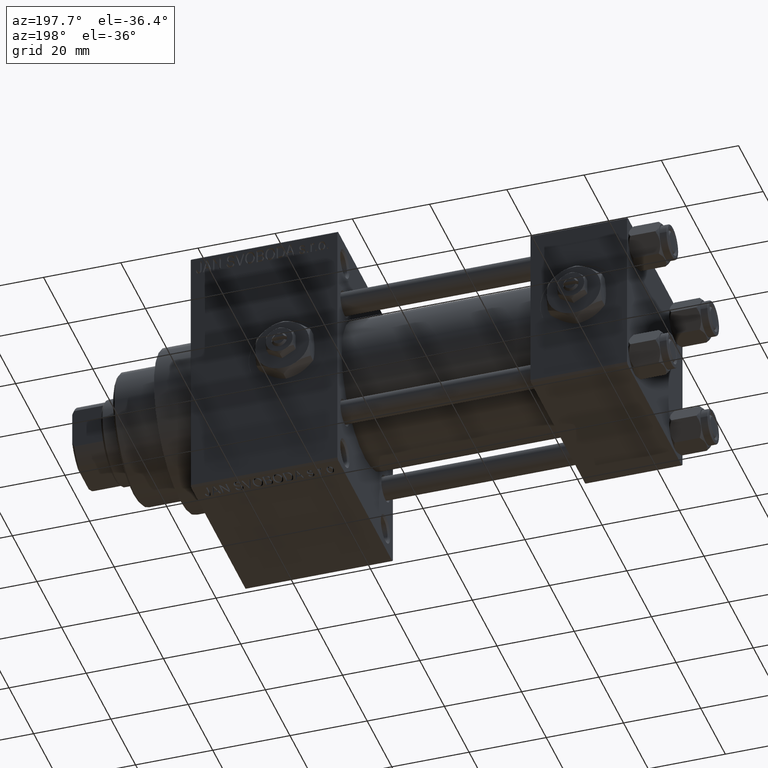
[diagram: clean part render]
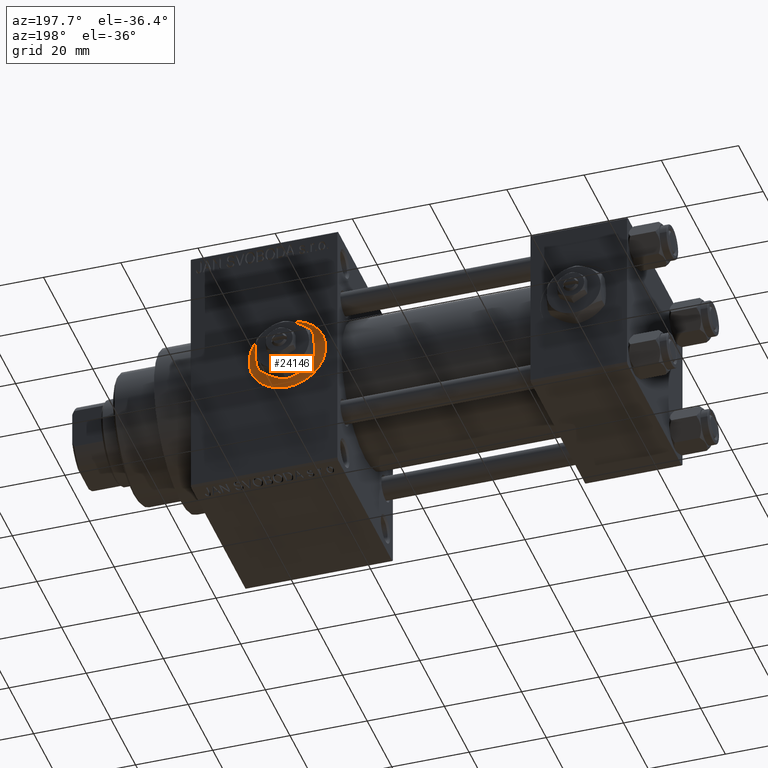
[diagram: same view with one face highlighted and labeled with its STEP entity id]
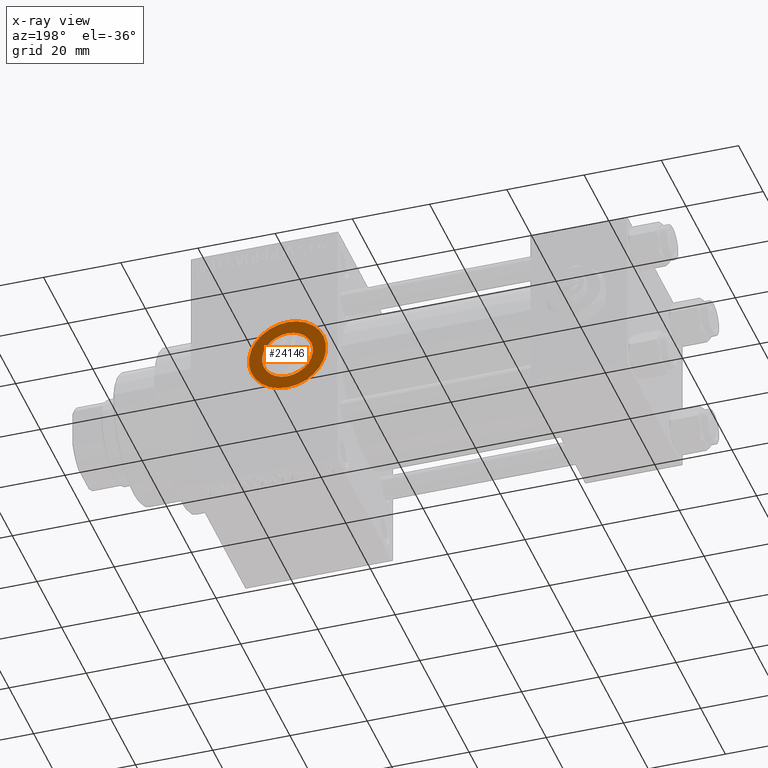
[diagram: x-ray of the same camera — body ghosted, the highlighted face saturated]
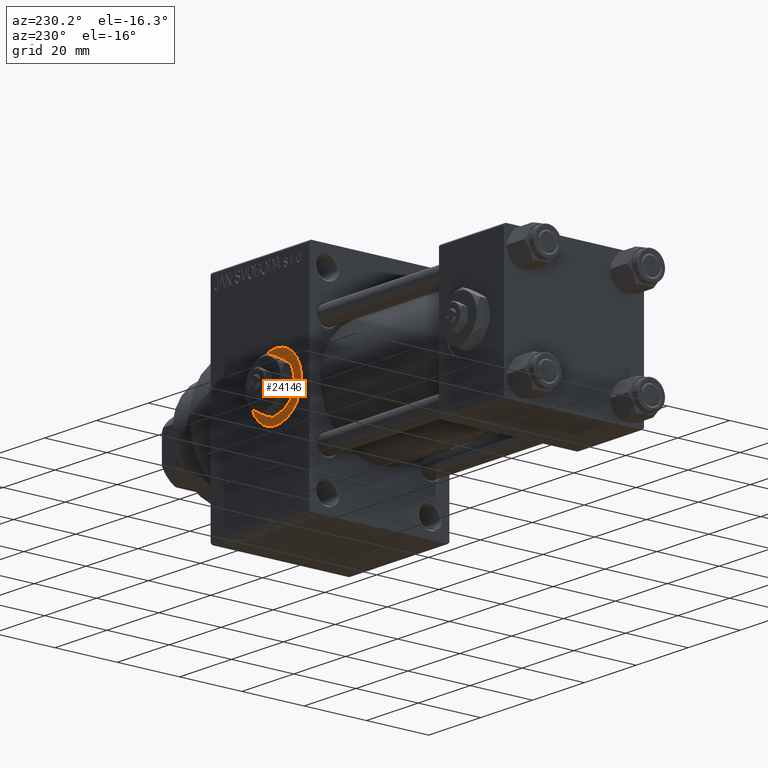
[diagram: same view with one face highlighted and labeled with its STEP entity id]
A machine part, auxiliary view. The second image highlights one B-rep face of the part: STEP entity #24146.
The next image is the same camera in x-ray: the body ghosted, the highlighted face saturated — about 0% of this face is hidden behind the body in this view.
A second angle (auxiliary view) of the same face is appended — the face is thin or edge-on in the first view.
In plain terms, the highlighted planar face has unit normal (0, 1, 0).
Its self-contained STEP definition (entity closure, byte-faithful):
#1880 = CARTESIAN_POINT ( 'NONE',  ( 88.00000000000001421, 22.29999999999999716, 0.000000000000000000 ) ) ;
#2176 = CARTESIAN_POINT ( 'NONE',  ( 88.00000000000001421, 22.29999999999999716, 9.999999999999994671 ) ) ;
#3578 = CARTESIAN_POINT ( 'NONE',  ( 88.00000000000001421, 22.29999999999999716, 0.000000000000000000 ) ) ;
#5781 = VERTEX_POINT ( 'NONE', #48895 ) ;
#7683 = CIRCLE ( 'NONE', #39444, 9.999999999999994671 ) ;
#8007 = CIRCLE ( 'NONE', #23886, 6.580000000000002736 ) ;
#8680 = EDGE_LOOP ( 'NONE', ( #39282, #43427 ) ) ;
#9431 = DIRECTION ( 'NONE',  ( 0.000000000000000000, 1.000000000000000000, 0.000000000000000000 ) ) ;
#9798 = FACE_OUTER_BOUND ( 'NONE', #8680, .T. ) ;
#10249 = EDGE_CURVE ( 'NONE', #32292, #35925, #7683, .T. ) ;
#11580 = CARTESIAN_POINT ( 'NONE',  ( 88.00000000000001421, 22.29999999999999716, 0.000000000000000000 ) ) ;
#12839 = AXIS2_PLACEMENT_3D ( 'NONE', #1880, #43655, #28718 ) ;
#13277 = AXIS2_PLACEMENT_3D ( 'NONE', #13399, #9431, #17110 ) ;
#13399 = CARTESIAN_POINT ( 'NONE',  ( 88.00000000000001421, 22.29999999999999716, 0.000000000000000000 ) ) ;
#13762 = CARTESIAN_POINT ( 'NONE',  ( 88.00000000000001421, 22.29999999999999716, 0.000000000000000000 ) ) ;
#16818 = EDGE_CURVE ( 'NONE', #35925, #32292, #34699, .T. ) ;
#17110 = DIRECTION ( 'NONE',  ( 0.000000000000000000, 0.000000000000000000, 1.000000000000000000 ) ) ;
#18222 = DIRECTION ( 'NONE',  ( 0.000000000000000000, 1.000000000000000000, 0.000000000000000000 ) ) ;
#19550 = CARTESIAN_POINT ( 'NONE',  ( 88.00000000000001421, 22.29999999999999716, -9.999999999999994671 ) ) ;
#20957 = FACE_BOUND ( 'NONE', #28617, .T. ) ;
#23262 = ORIENTED_EDGE ( 'NONE', *, *, #30449, .F. ) ;
#23886 = AXIS2_PLACEMENT_3D ( 'NONE', #3578, #18222, #48824 ) ;
#24146 = ADVANCED_FACE ( 'NONE', ( #20957, #9798 ), #32418, .T. ) ;
#24201 = DIRECTION ( 'NONE',  ( 0.000000000000000000, -0.000000000000000000, 1.000000000000000000 ) ) ;
#27567 = CARTESIAN_POINT ( 'NONE',  ( 88.00000000000001421, 22.29999999999999716, -6.580000000000002736 ) ) ;
#28617 = EDGE_LOOP ( 'NONE', ( #28898, #23262 ) ) ;
#28718 = DIRECTION ( 'NONE',  ( 0.000000000000000000, 0.000000000000000000, 1.000000000000000000 ) ) ;
#28898 = ORIENTED_EDGE ( 'NONE', *, *, #32677, .F. ) ;
#30449 = EDGE_CURVE ( 'NONE', #44945, #5781, #46991, .T. ) ;
#32292 = VERTEX_POINT ( 'NONE', #2176 ) ;
#32418 = PLANE ( 'NONE',  #44373 ) ;
#32677 = EDGE_CURVE ( 'NONE', #5781, #44945, #8007, .T. ) ;
#34699 = CIRCLE ( 'NONE', #13277, 9.999999999999994671 ) ;
#35925 = VERTEX_POINT ( 'NONE', #19550 ) ;
#37424 = DIRECTION ( 'NONE',  ( 0.000000000000000000, 0.000000000000000000, 1.000000000000000000 ) ) ;
#39282 = ORIENTED_EDGE ( 'NONE', *, *, #10249, .T. ) ;
#39444 = AXIS2_PLACEMENT_3D ( 'NONE', #11580, #42156, #37424 ) ;
#42156 = DIRECTION ( 'NONE',  ( 0.000000000000000000, 1.000000000000000000, 0.000000000000000000 ) ) ;
#43427 = ORIENTED_EDGE ( 'NONE', *, *, #16818, .T. ) ;
#43655 = DIRECTION ( 'NONE',  ( 0.000000000000000000, 1.000000000000000000, 0.000000000000000000 ) ) ;
#44373 = AXIS2_PLACEMENT_3D ( 'NONE', #13762, #47837, #24201 ) ;
#44945 = VERTEX_POINT ( 'NONE', #27567 ) ;
#46991 = CIRCLE ( 'NONE', #12839, 6.580000000000002736 ) ;
#47837 = DIRECTION ( 'NONE',  ( 0.000000000000000000, 1.000000000000000000, 0.000000000000000000 ) ) ;
#48824 = DIRECTION ( 'NONE',  ( 0.000000000000000000, 0.000000000000000000, 1.000000000000000000 ) ) ;
#48895 = CARTESIAN_POINT ( 'NONE',  ( 88.00000000000001421, 22.29999999999999716, 6.580000000000002736 ) ) ;